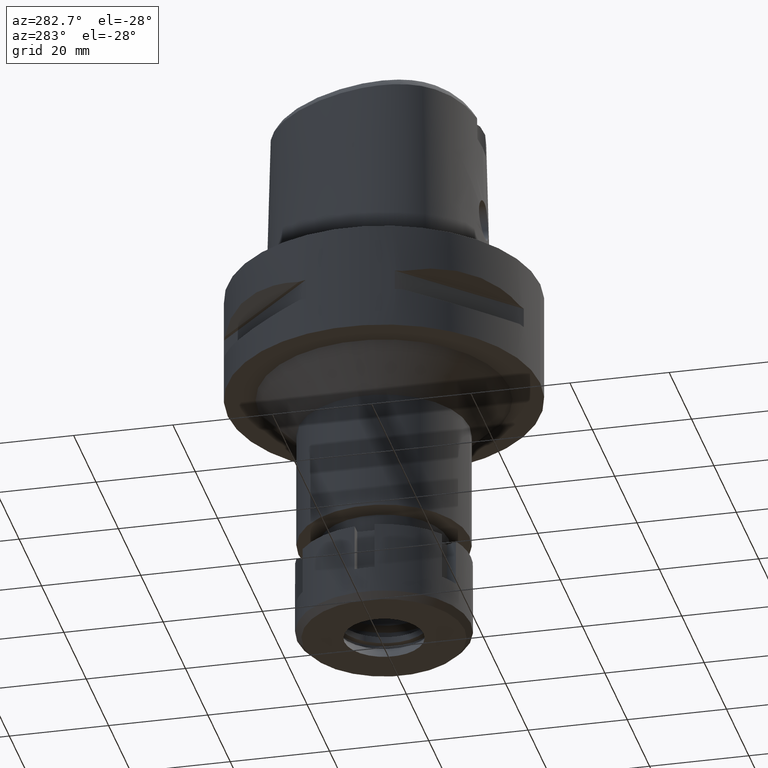
[diagram: clean part render]
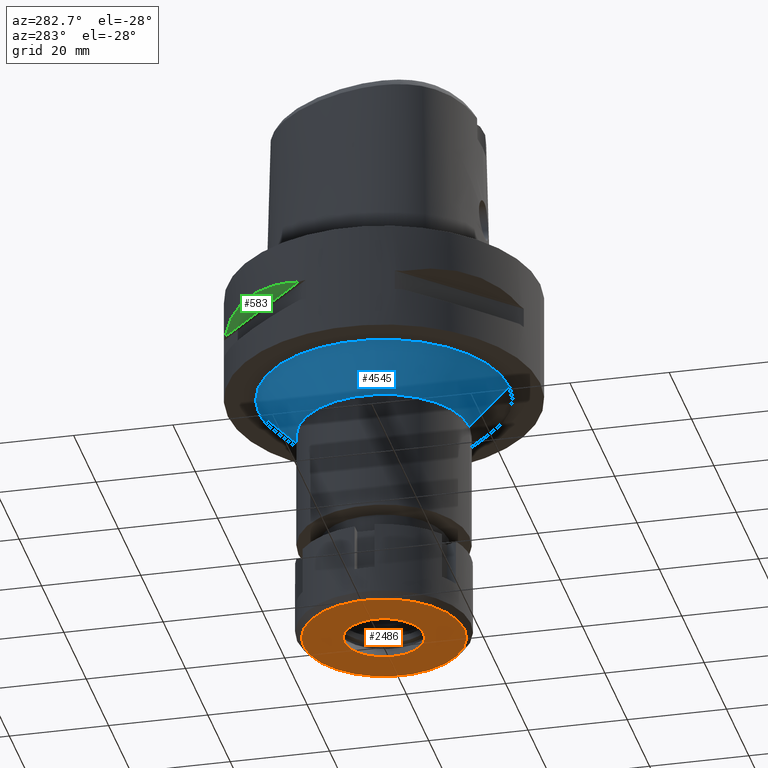
[diagram: same view with three faces highlighted in distinct colors, each labeled with its STEP entity id]
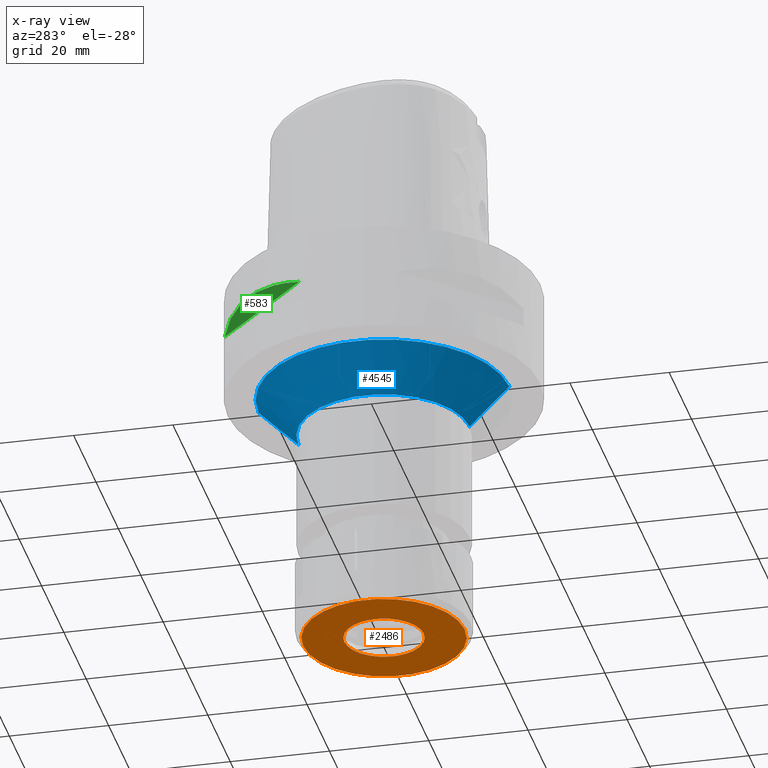
[diagram: x-ray of the same camera — body ghosted, the three highlighted faces saturated]
A machine part, auxiliary view with three faces highlighted in distinct colors.
The next image is the same camera in x-ray (body ghosted, the three faces saturated) — at least one of them is partly hidden behind the body in this view.
Their STEP definitions:

[orange] entity #2486 — the highlighted planar face has unit normal (0, 0, -1).
#71 = CARTESIAN_POINT ( 'NONE',  ( 0.0000000000000000000, 16.25000000000000000, -16.00000000000000000 ) ) ;
#199 = PLANE ( 'NONE',  #4267 ) ;
#481 = CARTESIAN_POINT ( 'NONE',  ( 0.0000000000000000000, -16.25000000000000000, -16.00000000000000000 ) ) ;
#560 = EDGE_CURVE ( 'NONE', #4842, #911, #684, .T. ) ;
#684 = CIRCLE ( 'NONE', #4903, 8.000000000000000000 ) ;
#911 = VERTEX_POINT ( 'NONE', #1872 ) ;
#1063 = CARTESIAN_POINT ( 'NONE',  ( 0.0000000000000000000, 0.0000000000000000000, -16.00000000000000000 ) ) ;
#1303 = EDGE_LOOP ( 'NONE', ( #1350, #3045 ) ) ;
#1350 = ORIENTED_EDGE ( 'NONE', *, *, #3660, .F. ) ;
#1524 = CARTESIAN_POINT ( 'NONE',  ( 0.0000000000000000000, 0.0000000000000000000, -16.00000000000000000 ) ) ;
#1536 = FACE_BOUND ( 'NONE', #3651, .T. ) ;
#1644 = ORIENTED_EDGE ( 'NONE', *, *, #560, .F. ) ;
#1793 = DIRECTION ( 'NONE',  ( 0.0000000000000000000, 1.000000000000000000, 0.0000000000000000000 ) ) ;
#1872 = CARTESIAN_POINT ( 'NONE',  ( 0.0000000000000000000, 8.000000000000000000, -16.00000000000000000 ) ) ;
#1882 = CARTESIAN_POINT ( 'NONE',  ( 0.0000000000000000000, -8.000000000000000000, -16.00000000000000000 ) ) ;
#2008 = DIRECTION ( 'NONE',  ( 0.0000000000000000000, -1.000000000000000000, 0.0000000000000000000 ) ) ;
#2181 = DIRECTION ( 'NONE',  ( 0.0000000000000000000, 1.000000000000000000, 0.0000000000000000000 ) ) ;
#2366 = DIRECTION ( 'NONE',  ( 0.0000000000000000000, -1.000000000000000000, 0.0000000000000000000 ) ) ;
#2486 = ADVANCED_FACE ( 'NONE', ( #4420, #1536 ), #199, .T. ) ;
#2788 = AXIS2_PLACEMENT_3D ( 'NONE', #1524, #4516, #2366 ) ;
#2957 = VERTEX_POINT ( 'NONE', #481 ) ;
#3045 = ORIENTED_EDGE ( 'NONE', *, *, #4442, .F. ) ;
#3059 = CIRCLE ( 'NONE', #4907, 16.25000000000000000 ) ;
#3131 = CIRCLE ( 'NONE', #4001, 8.000000000000000000 ) ;
#3186 = DIRECTION ( 'NONE',  ( 0.0000000000000000000, -1.000000000000000000, 0.0000000000000000000 ) ) ;
#3233 = CIRCLE ( 'NONE', #2788, 16.25000000000000000 ) ;
#3449 = DIRECTION ( 'NONE',  ( 0.0000000000000000000, 0.0000000000000000000, -1.000000000000000000 ) ) ;
#3565 = DIRECTION ( 'NONE',  ( 0.0000000000000000000, 0.0000000000000000000, 1.000000000000000000 ) ) ;
#3651 = EDGE_LOOP ( 'NONE', ( #4761, #1644 ) ) ;
#3660 = EDGE_CURVE ( 'NONE', #5112, #2957, #3059, .T. ) ;
#4001 = AXIS2_PLACEMENT_3D ( 'NONE', #4219, #3449, #2181 ) ;
#4107 = DIRECTION ( 'NONE',  ( 0.0000000000000000000, 0.0000000000000000000, -1.000000000000000000 ) ) ;
#4219 = CARTESIAN_POINT ( 'NONE',  ( 0.0000000000000000000, 0.0000000000000000000, -16.00000000000000000 ) ) ;
#4267 = AXIS2_PLACEMENT_3D ( 'NONE', #1063, #4865, #3186 ) ;
#4420 = FACE_OUTER_BOUND ( 'NONE', #1303, .T. ) ;
#4442 = EDGE_CURVE ( 'NONE', #2957, #5112, #3233, .T. ) ;
#4516 = DIRECTION ( 'NONE',  ( 0.0000000000000000000, 0.0000000000000000000, 1.000000000000000000 ) ) ;
#4761 = ORIENTED_EDGE ( 'NONE', *, *, #5348, .F. ) ;
#4842 = VERTEX_POINT ( 'NONE', #1882 ) ;
#4865 = DIRECTION ( 'NONE',  ( 0.0000000000000000000, 0.0000000000000000000, -1.000000000000000000 ) ) ;
#4903 = AXIS2_PLACEMENT_3D ( 'NONE', #5373, #4107, #2008 ) ;
#4907 = AXIS2_PLACEMENT_3D ( 'NONE', #5187, #3565, #1793 ) ;
#5112 = VERTEX_POINT ( 'NONE', #71 ) ;
#5187 = CARTESIAN_POINT ( 'NONE',  ( 0.0000000000000000000, 0.0000000000000000000, -16.00000000000000000 ) ) ;
#5348 = EDGE_CURVE ( 'NONE', #911, #4842, #3131, .T. ) ;
#5373 = CARTESIAN_POINT ( 'NONE',  ( 0.0000000000000000000, 0.0000000000000000000, -16.00000000000000000 ) ) ;

[blue] entity #4545 — the highlighted conical surface has half-angle 45 deg.
#21 = VERTEX_POINT ( 'NONE', #1504 ) ;
#84 = EDGE_CURVE ( 'NONE', #156, #3043, #1907, .T. ) ;
#156 = VERTEX_POINT ( 'NONE', #1852 ) ;
#296 = CIRCLE ( 'NONE', #2237, 17.25000000000000000 ) ;
#332 = EDGE_CURVE ( 'NONE', #3344, #21, #697, .T. ) ;
#413 = AXIS2_PLACEMENT_3D ( 'NONE', #1488, #656, #3136 ) ;
#656 = DIRECTION ( 'NONE',  ( 0.0000000000000000000, 0.0000000000000000000, -1.000000000000000000 ) ) ;
#697 = LINE ( 'NONE', #2064, #764 ) ;
#729 = CARTESIAN_POINT ( 'NONE',  ( 0.0000000000000000000, -25.25000000000000000, -22.00000000000000000 ) ) ;
#764 = VECTOR ( 'NONE', #2007, 1000.000000000000114 ) ;
#1027 = VECTOR ( 'NONE', #4025, 1000.000000000000114 ) ;
#1250 = DIRECTION ( 'NONE',  ( 0.0000000000000000000, -1.000000000000000000, 0.0000000000000000000 ) ) ;
#1383 = CONICAL_SURFACE ( 'NONE', #1817, 21.25000000000000000, 0.7853981633972997312 ) ;
#1439 = EDGE_CURVE ( 'NONE', #21, #3043, #296, .T. ) ;
#1488 = CARTESIAN_POINT ( 'NONE',  ( 0.0000000000000000000, 0.0000000000000000000, -22.00000000000000000 ) ) ;
#1504 = CARTESIAN_POINT ( 'NONE',  ( 0.0000000000000000000, -17.25000000000000000, -30.00000000000000000 ) ) ;
#1777 = ORIENTED_EDGE ( 'NONE', *, *, #332, .F. ) ;
#1817 = AXIS2_PLACEMENT_3D ( 'NONE', #2722, #4847, #3606 ) ;
#1852 = CARTESIAN_POINT ( 'NONE',  ( 0.0000000000000000000, 25.25000000000000000, -22.00000000000000000 ) ) ;
#1907 = LINE ( 'NONE', #2346, #1027 ) ;
#2007 = DIRECTION ( 'NONE',  ( 0.0000000000000000000, 0.7071067811865474617, -0.7071067811865474617 ) ) ;
#2064 = CARTESIAN_POINT ( 'NONE',  ( 0.0000000000000000000, -25.25000000000000000, -22.00000000000000000 ) ) ;
#2104 = ORIENTED_EDGE ( 'NONE', *, *, #3212, .T. ) ;
#2237 = AXIS2_PLACEMENT_3D ( 'NONE', #4167, #2908, #1250 ) ;
#2346 = CARTESIAN_POINT ( 'NONE',  ( 0.0000000000000000000, 25.25000000000000000, -22.00000000000000000 ) ) ;
#2550 = CARTESIAN_POINT ( 'NONE',  ( 0.0000000000000000000, 17.25000000000000000, -30.00000000000000000 ) ) ;
#2694 = FACE_OUTER_BOUND ( 'NONE', #3845, .T. ) ;
#2722 = CARTESIAN_POINT ( 'NONE',  ( 0.0000000000000000000, 0.0000000000000000000, -26.00000000000000000 ) ) ;
#2908 = DIRECTION ( 'NONE',  ( 0.0000000000000000000, 0.0000000000000000000, -1.000000000000000000 ) ) ;
#2988 = ORIENTED_EDGE ( 'NONE', *, *, #84, .T. ) ;
#3043 = VERTEX_POINT ( 'NONE', #2550 ) ;
#3136 = DIRECTION ( 'NONE',  ( 0.0000000000000000000, -1.000000000000000000, 0.0000000000000000000 ) ) ;
#3212 = EDGE_CURVE ( 'NONE', #3344, #156, #4554, .T. ) ;
#3344 = VERTEX_POINT ( 'NONE', #729 ) ;
#3606 = DIRECTION ( 'NONE',  ( 0.0000000000000000000, 1.000000000000000000, 0.0000000000000000000 ) ) ;
#3845 = EDGE_LOOP ( 'NONE', ( #4285, #1777, #2104, #2988 ) ) ;
#4025 = DIRECTION ( 'NONE',  ( 0.0000000000000000000, -0.7071067811865474617, -0.7071067811865474617 ) ) ;
#4167 = CARTESIAN_POINT ( 'NONE',  ( 0.0000000000000000000, 0.0000000000000000000, -30.00000000000000000 ) ) ;
#4285 = ORIENTED_EDGE ( 'NONE', *, *, #1439, .F. ) ;
#4545 = ADVANCED_FACE ( 'NONE', ( #2694 ), #1383, .T. ) ;
#4554 = CIRCLE ( 'NONE', #413, 25.25000000000000000 ) ;
#4847 = DIRECTION ( 'NONE',  ( 0.0000000000000000000, 0.0000000000000000000, 1.000000000000000000 ) ) ;

[green] entity #583 — the highlighted planar face has unit normal (0.3536, -0.3536, 0.866).
#158 = EDGE_LOOP ( 'NONE', ( #1461, #923 ) ) ;
#550 = CARTESIAN_POINT ( 'NONE',  ( -12.70092055726457225, 28.92474506846247451, -9.353547358238497367 ) ) ;
#583 = ADVANCED_FACE ( 'NONE', ( #2422 ), #747, .F. ) ;
#747 = PLANE ( 'NONE',  #2527 ) ;
#923 = ORIENTED_EDGE ( 'NONE', *, *, #1778, .F. ) ;
#1313 = VERTEX_POINT ( 'NONE', #1966 ) ;
#1328 = DIRECTION ( 'NONE',  ( -0.7071067811865474617, -0.7071067811865474617, 0.0000000000000000000 ) ) ;
#1363 = VERTEX_POINT ( 'NONE', #3654 ) ;
#1434 = CARTESIAN_POINT ( 'NONE',  ( -10.44775724750000023, 29.71690375017999841, -9.949999999998999201 ) ) ;
#1461 = ORIENTED_EDGE ( 'NONE', *, *, #5345, .T. ) ;
#1778 = EDGE_CURVE ( 'NONE', #1363, #1313, #5266, .T. ) ;
#1780 = CARTESIAN_POINT ( 'NONE',  ( -23.90617837143843971, 20.64154884331406237, -8.160613588453228928 ) ) ;
#1809 = CARTESIAN_POINT ( 'NONE',  ( -27.88210502980663819, 14.84430321584963330, -8.906184731949373656 ) ) ;
#1966 = CARTESIAN_POINT ( 'NONE',  ( -29.71690375017999841, 10.44775724750000023, -9.949999999998999201 ) ) ;
#2096 = DIRECTION ( 'NONE',  ( -0.7071067811865475727, -0.7071067811865475727, 0.0000000000000000000 ) ) ;
#2223 = CARTESIAN_POINT ( 'NONE',  ( -18.81455742157509903, 25.37277178172508840, -8.309746333145060504 ) ) ;
#2258 = CARTESIAN_POINT ( 'NONE',  ( -25.37272068394556257, 18.81462633037747167, -8.309724968578816373 ) ) ;
#2422 = FACE_OUTER_BOUND ( 'NONE', #158, .T. ) ;
#2527 = AXIS2_PLACEMENT_3D ( 'NONE', #4493, #3718, #2096 ) ;
#2543 = CARTESIAN_POINT ( 'NONE',  ( -10.44775724750000023, 29.71690375017999841, -9.949999999998999201 ) ) ;
#3056 = CARTESIAN_POINT ( 'NONE',  ( -14.84422749192772883, 27.88214534473898354, -8.906206096515614234 ) ) ;
#3399 = LINE ( 'NONE', #2543, #5235 ) ;
#3463 = CARTESIAN_POINT ( 'NONE',  ( -29.71690375017999841, 10.44775724750000023, -9.949999999998999201 ) ) ;
#3654 = CARTESIAN_POINT ( 'NONE',  ( -10.44775724750000023, 29.71690375017999841, -9.949999999998999201 ) ) ;
#3718 = DIRECTION ( 'NONE',  ( 0.3535533905933054277, -0.3535533905933054277, 0.8660254037844128394 ) ) ;
#3902 = CARTESIAN_POINT ( 'NONE',  ( -28.92472615203844910, 12.70097436187914575, -9.353533115194341718 ) ) ;
#4380 = CARTESIAN_POINT ( 'NONE',  ( -20.64154884331406237, 23.90617837143844682, -8.160627831321445314 ) ) ;
#4493 = CARTESIAN_POINT ( 'NONE',  ( -37.12310601229000184, 8.838834764832000701, -7.583270440698999693 ) ) ;
#5235 = VECTOR ( 'NONE', #1328, 1000.000000000000114 ) ;
#5266 = B_SPLINE_CURVE_WITH_KNOTS ( 'NONE', 3,
 ( #1434, #550, #3056, #2223, #4380, #1780, #2258, #1809, #3902, #3463 ),
 .UNSPECIFIED., .F., .F.,
 ( 4, 2, 2, 2, 4 ),
 ( 0.0000000000000000000, 0.2500000000000000000, 0.5000000000000000000, 0.7500000000000000000, 1.000000000000000000 ),
 .UNSPECIFIED. ) ;
#5345 = EDGE_CURVE ( 'NONE', #1363, #1313, #3399, .T. ) ;